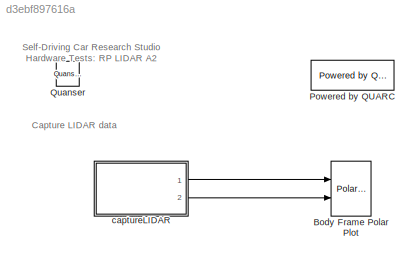
MODEL slx_d3ebf897616a
KIND model
CONFIG AbsTol = auto
CONFIG EnableMultiTasking = on
CONFIG FixedStep = 1/30
CONFIG MaxStep = auto
CONFIG MinStep = auto
CONFIG RelTol = 1e-3
CONFIG SampleTimeConstraint = Unconstrained
CONFIG Solver = ode2
CONFIG SolverName = ode2
CONFIG StartTime = 0.0
CONFIG StopTime = inf
BLOCK [Reference] Body Frame Polar Plot  REF=quarc_library/Sinks/Figures/Polar Figure
  Ports = [2]
  SourceBlock = quarc_library/Sinks/Figures/Polar Figure
  SourceProductName = QUARC Targets
  SourceType = Polar Figure
BLOCK [Reference] Powered by QUARC  REF=quarc_library/Logos/Powered by QUARC
  Ports = []
  SourceBlock = quarc_library/Logos/Powered by QUARC
  SourceProductName = QUARC Targets
  SourceType = Powered by QUARC
BLOCK [Reference] Quanser  REF=quarc_library/Logos/Quanser
  Ports = []
  SourceBlock = quarc_library/Logos/Quanser
  SourceProductName = QUARC Targets
  SourceType = Powered by Quanser
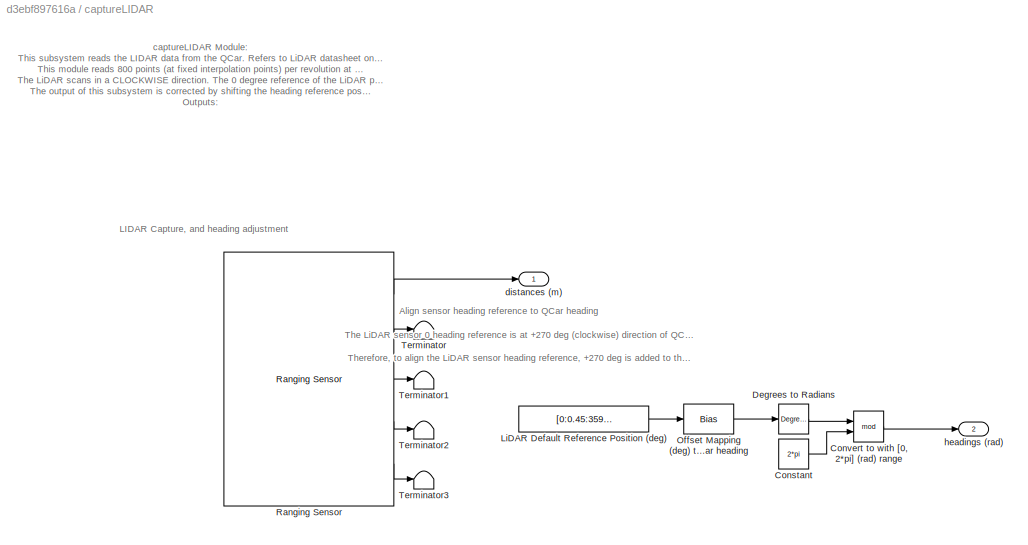
BLOCK [SubSystem] captureLIDAR
  Ports = [0, 2]
  RequestExecContextInheritance = off
BLOCK [Constant] captureLIDAR/Constant
  Value = 2*pi
BLOCK [Math] captureLIDAR/Convert to with [0, 2*pi] (rad) range
  Operator = mod
  Ports = [2, 1]
BLOCK [Reference] captureLIDAR/Degrees to Radians  REF=simulink_extras/Transformations/Degrees to
Radians
  Ports = [1, 1]
  SourceBlock = simulink_extras/Transformations/Degrees to\nRadians
  SourceProductBaseCode = SL
  SourceType = DegreesToRadians
BLOCK [Constant] captureLIDAR/LiDAR Default Reference Position (deg)
  Value = [0:0.45:359.55]
BLOCK [Bias] captureLIDAR/Offset Mapping (deg) to align with QCar heading
  Bias = 270
  SaturateOnIntegerOverflow = off
BLOCK [Reference] captureLIDAR/Ranging Sensor  REF=quarc_library/Devices/Third-Party/Distance Sensors/Ranging Sensor
  Ports = [0, 5]
  SourceBlock = quarc_library/Devices/Third-Party/Distance Sensors/Ranging Sensor
  SourceProductName = QUARC Targets
  SourceType = Ranging Sensor
BLOCK [Terminator] captureLIDAR/Terminator
BLOCK [Terminator] captureLIDAR/Terminator1
BLOCK [Terminator] captureLIDAR/Terminator2
BLOCK [Terminator] captureLIDAR/Terminator3
BLOCK [Outport] captureLIDAR/distances (m)
  IconDisplay = Port number
BLOCK [Outport] captureLIDAR/headings (rad)
  IconDisplay = Port number
  Port = 2
ANNOTATION (root): Self-Driving Car Research Studio Hardware Tests: RP LIDAR A2
ANNOTATION (root): Capture LIDAR data
ANNOTATION captureLIDAR: captureLIDAR Module: This subsystem reads the LIDAR data from the QCar. Refers to LiDAR datasheet on detailed data specifications. This module reads 800 points (at fixed interpolation points) per revolution at 10 Hz (10 revolution scan per second). The LiDAR scans in a CLOCKWISE direction. The 0 degree reference of the LiDAR points to the LEFT side of the QCar. The output of this subsystem is corr...<+289ch>
ANNOTATION captureLIDAR: Align sensor heading reference to QCar heading
ANNOTATION captureLIDAR: LIDAR Capture, and heading adjustment
ANNOTATION captureLIDAR: The LiDAR sensor 0 heading reference is at +270 deg (clockwise) direction of QCar heading. Therefore, to align the LiDAR sensor heading reference, +270 deg is added to the default heading reference.
LINE captureLIDAR/Constant:1 -> captureLIDAR/Convert to with [0, 2*pi] (rad) range:2
LINE captureLIDAR/Convert to with [0, 2*pi] (rad) range:1 -> captureLIDAR/headings (rad):1
LINE captureLIDAR/Degrees to Radians:1 -> captureLIDAR/Convert to with [0, 2*pi] (rad) range:1
LINE captureLIDAR/LiDAR Default Reference Position (deg):1 -> captureLIDAR/Offset Mapping (deg) to align with QCar heading:1
LINE captureLIDAR/Offset Mapping (deg) to align with QCar heading:1 -> captureLIDAR/Degrees to Radians:1
LINE captureLIDAR/Ranging Sensor:1 -> captureLIDAR/distances (m):1
LINE captureLIDAR/Ranging Sensor:2 -> captureLIDAR/Terminator:1
LINE captureLIDAR/Ranging Sensor:3 -> captureLIDAR/Terminator1:1
LINE captureLIDAR/Ranging Sensor:4 -> captureLIDAR/Terminator2:1
LINE captureLIDAR/Ranging Sensor:5 -> captureLIDAR/Terminator3:1
LINE captureLIDAR:1 -> Body Frame Polar Plot:1
LINE captureLIDAR:2 -> Body Frame Polar Plot:2
